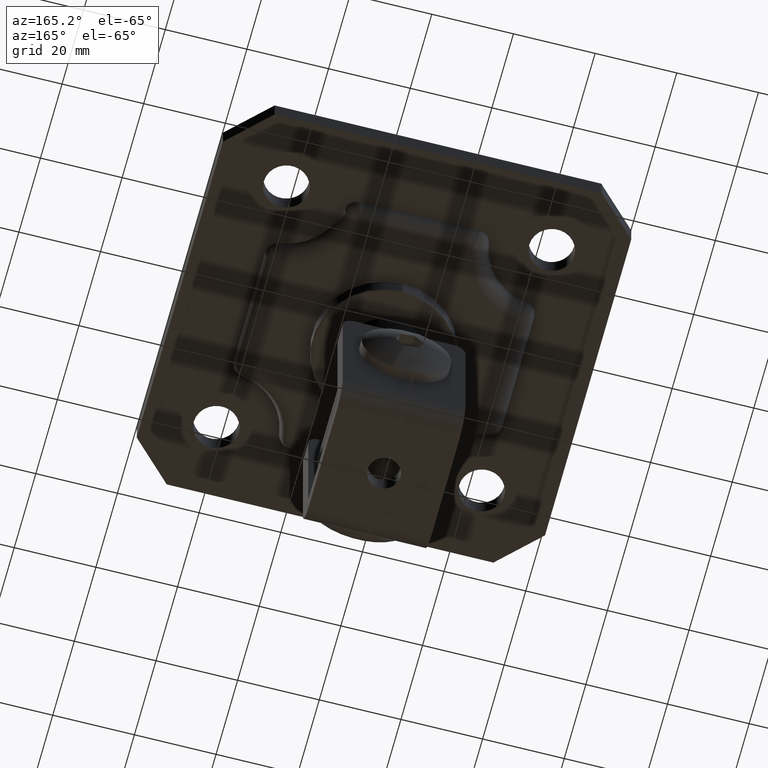
[diagram: clean part render]
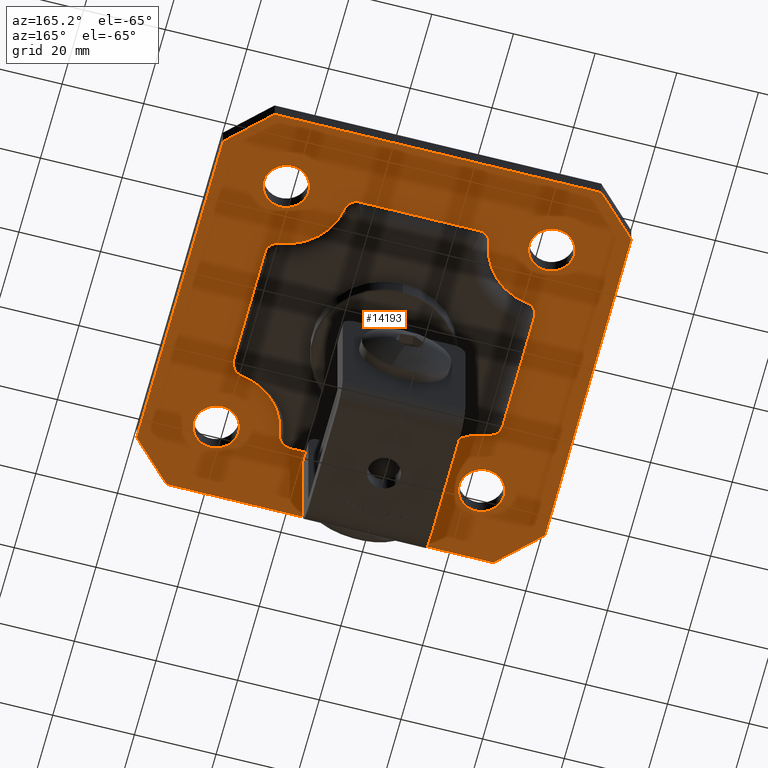
[diagram: same view with one face highlighted and labeled with its STEP entity id]
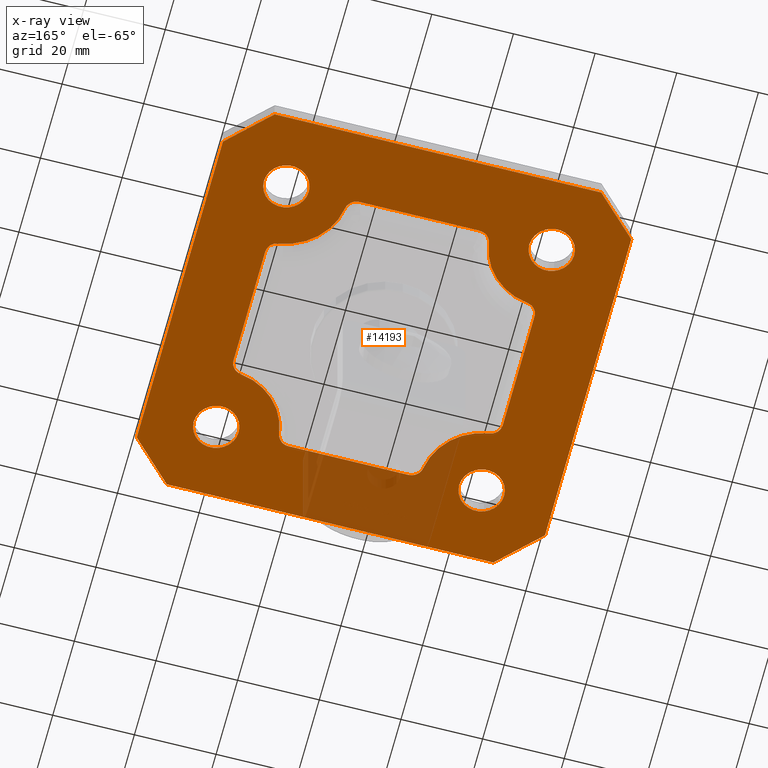
[diagram: x-ray of the same camera — body ghosted, the highlighted face saturated]
A machine part, auxiliary view. The second image highlights one B-rep face of the part: STEP entity #14193.
The next image is the same camera in x-ray: the body ghosted, the highlighted face saturated — about 11% of this face is hidden behind the body in this view.
In plain terms, the highlighted planar face has unit normal (0, 0, -1).
Its self-contained STEP definition (entity closure, byte-faithful):
#14 = EDGE_CURVE ( 'NONE', #5047, #5505, #2516, .T. ) ;
#40 = CARTESIAN_POINT ( 'NONE',  ( -30.00000000000008500, 14.67445653002416300, 2.500000000000002200 ) ) ;
#142 = FACE_OUTER_BOUND ( 'NONE', #11369, .T. ) ;
#188 = EDGE_LOOP ( 'NONE', ( #15005, #862 ) ) ;
#402 = CARTESIAN_POINT ( 'NONE',  ( -38.00000000000009200, 32.50000000000009200, 2.500000000000002200 ) ) ;
#404 = EDGE_CURVE ( 'NONE', #9522, #10884, #17188, .T. ) ;
#410 = DIRECTION ( 'NONE',  ( 0.0000000000000000000, 0.0000000000000000000, 1.000000000000000000 ) ) ;
#453 = EDGE_CURVE ( 'NONE', #3191, #16392, #10427, .T. ) ;
#492 = AXIS2_PLACEMENT_3D ( 'NONE', #8103, #10165, #15516 ) ;
#725 = CARTESIAN_POINT ( 'NONE',  ( 14.67445653002416300, -30.00000000000008500, 2.500000000000002200 ) ) ;
#732 = CARTESIAN_POINT ( 'NONE',  ( -30.41666666666675300, 17.64538044168681500, 2.500000000000002200 ) ) ;
#790 = ORIENTED_EDGE ( 'NONE', *, *, #11199, .T. ) ;
#792 = CARTESIAN_POINT ( 'NONE',  ( 30.41666666666675300, 17.64538044168681500, 2.500000000000002200 ) ) ;
#808 = CIRCLE ( 'NONE', #16131, 3.000000000000006200 ) ;
#862 = ORIENTED_EDGE ( 'NONE', *, *, #453, .F. ) ;
#1063 = CARTESIAN_POINT ( 'NONE',  ( -50.00000000000017100, -50.00000000000017100, 2.500000000000002200 ) ) ;
#1066 = AXIS2_PLACEMENT_3D ( 'NONE', #10402, #13937, #10479 ) ;
#1147 = ORIENTED_EDGE ( 'NONE', *, *, #8750, .T. ) ;
#1154 = VERTEX_POINT ( 'NONE', #11385 ) ;
#1183 = EDGE_LOOP ( 'NONE', ( #7675, #8324 ) ) ;
#1288 = FACE_BOUND ( 'NONE', #14397, .T. ) ;
#1485 = ORIENTED_EDGE ( 'NONE', *, *, #7702, .F. ) ;
#1494 = CARTESIAN_POINT ( 'NONE',  ( 17.64538044168681500, 30.41666666666675300, 2.500000000000002200 ) ) ;
#1508 = ORIENTED_EDGE ( 'NONE', *, *, #21759, .T. ) ;
#1516 = DIRECTION ( 'NONE',  ( 1.000000000000000000, 0.0000000000000000000, 0.0000000000000000000 ) ) ;
#1524 = VERTEX_POINT ( 'NONE', #17024 ) ;
#1538 = CARTESIAN_POINT ( 'NONE',  ( 30.00000000000008500, -14.67445653002416300, 2.500000000000002200 ) ) ;
#1567 = FACE_BOUND ( 'NONE', #188, .T. ) ;
#1586 = VECTOR ( 'NONE', #10205, 1000.000000000000000 ) ;
#1628 = DIRECTION ( 'NONE',  ( 1.000000000000000000, 0.0000000000000000000, 0.0000000000000000000 ) ) ;
#1651 = CIRCLE ( 'NONE', #13244, 3.000000000000006200 ) ;
#1786 = AXIS2_PLACEMENT_3D ( 'NONE', #15859, #23002, #1516 ) ;
#1893 = DIRECTION ( 'NONE',  ( 1.000000000000000000, 0.0000000000000000000, 0.0000000000000000000 ) ) ;
#1907 = EDGE_CURVE ( 'NONE', #22791, #17912, #20463, .T. ) ;
#1974 = VERTEX_POINT ( 'NONE', #16852 ) ;
#1983 = VERTEX_POINT ( 'NONE', #15020 ) ;
#2119 = VECTOR ( 'NONE', #13485, 1000.000000000000000 ) ;
#2145 = EDGE_CURVE ( 'NONE', #17912, #22791, #21586, .T. ) ;
#2251 = CARTESIAN_POINT ( 'NONE',  ( -14.67445653002417000, -33.00000000000008500, 2.500000000000002200 ) ) ;
#2318 = DIRECTION ( 'NONE',  ( 1.000000000000000000, 0.0000000000000000000, 0.0000000000000000000 ) ) ;
#2352 = AXIS2_PLACEMENT_3D ( 'NONE', #725, #6703, #8583 ) ;
#2378 = CARTESIAN_POINT ( 'NONE',  ( -38.00000000000009200, -32.50000000000009900, 2.500000000000002200 ) ) ;
#2516 = CIRCLE ( 'NONE', #5023, 5.500000000000011500 ) ;
#2525 = DIRECTION ( 'NONE',  ( 0.0000000000000000000, 0.0000000000000000000, -1.000000000000000000 ) ) ;
#2805 = ORIENTED_EDGE ( 'NONE', *, *, #20796, .T. ) ;
#2887 = CARTESIAN_POINT ( 'NONE',  ( -50.00000000000018500, -40.00000000000002100, 2.500000000000002200 ) ) ;
#2994 = VECTOR ( 'NONE', #3659, 999.9999999999998900 ) ;
#3028 = ORIENTED_EDGE ( 'NONE', *, *, #17146, .F. ) ;
#3169 = EDGE_CURVE ( 'NONE', #14350, #20970, #5755, .T. ) ;
#3191 = VERTEX_POINT ( 'NONE', #17948 ) ;
#3221 = LINE ( 'NONE', #8850, #3484 ) ;
#3245 = AXIS2_PLACEMENT_3D ( 'NONE', #6817, #6895, #1628 ) ;
#3294 = CARTESIAN_POINT ( 'NONE',  ( -33.00000000000008500, 14.67445653002416300, 2.500000000000002200 ) ) ;
#3429 = EDGE_CURVE ( 'NONE', #1524, #16254, #23306, .T. ) ;
#3484 = VECTOR ( 'NONE', #7181, 999.9999999999998900 ) ;
#3522 = CARTESIAN_POINT ( 'NONE',  ( 14.67445653002416300, 30.00000000000008500, 2.500000000000002200 ) ) ;
#3659 = DIRECTION ( 'NONE',  ( -0.7071067811865485700, -0.7071067811865464600, -0.0000000000000000000 ) ) ;
#3734 = CARTESIAN_POINT ( 'NONE',  ( -45.00000000000003600, 45.00000000000015600, 2.500000000000002200 ) ) ;
#3805 = VECTOR ( 'NONE', #19715, 1000.000000000000000 ) ;
#3815 = ORIENTED_EDGE ( 'NONE', *, *, #20863, .T. ) ;
#3839 = DIRECTION ( 'NONE',  ( -0.0000000000000000000, -0.0000000000000000000, -1.000000000000000000 ) ) ;
#3856 = LINE ( 'NONE', #18290, #21993 ) ;
#3865 = ORIENTED_EDGE ( 'NONE', *, *, #22665, .T. ) ;
#3984 = CARTESIAN_POINT ( 'NONE',  ( -32.50000000000009200, -32.50000000000009900, 2.500000000000002200 ) ) ;
#4087 = CIRCLE ( 'NONE', #17164, 3.000000000000006200 ) ;
#4160 = ORIENTED_EDGE ( 'NONE', *, *, #9846, .T. ) ;
#4310 = DIRECTION ( 'NONE',  ( 1.000000000000000000, 1.156482317317869000E-015, 0.0000000000000000000 ) ) ;
#4365 = CARTESIAN_POINT ( 'NONE',  ( 33.00000000000008500, -14.67445653002416300, 2.500000000000002200 ) ) ;
#4434 = DIRECTION ( 'NONE',  ( 0.0000000000000000000, 0.0000000000000000000, -1.000000000000000000 ) ) ;
#4587 = CARTESIAN_POINT ( 'NONE',  ( -40.00000000000009200, 50.00000000000017100, 2.500000000000002200 ) ) ;
#5014 = CIRCLE ( 'NONE', #3245, 3.000000000000008000 ) ;
#5023 = AXIS2_PLACEMENT_3D ( 'NONE', #3984, #18208, #21811 ) ;
#5047 = VERTEX_POINT ( 'NONE', #2378 ) ;
#5061 = AXIS2_PLACEMENT_3D ( 'NONE', #18381, #9282, #18457 ) ;
#5203 = CARTESIAN_POINT ( 'NONE',  ( -33.00000000000008500, 17.50833564943510000, 2.500000000000002200 ) ) ;
#5332 = EDGE_CURVE ( 'NONE', #1974, #22636, #14791, .T. ) ;
#5419 = EDGE_LOOP ( 'NONE', ( #1485, #18647 ) ) ;
#5431 = ORIENTED_EDGE ( 'NONE', *, *, #5523, .F. ) ;
#5505 = VERTEX_POINT ( 'NONE', #12534 ) ;
#5523 = EDGE_CURVE ( 'NONE', #16141, #21801, #17319, .T. ) ;
#5755 = LINE ( 'NONE', #7205, #10277 ) ;
#5783 = CIRCLE ( 'NONE', #9272, 3.000000000000008000 ) ;
#6073 = DIRECTION ( 'NONE',  ( 1.000000000000000000, 0.0000000000000000000, 0.0000000000000000000 ) ) ;
#6152 = EDGE_CURVE ( 'NONE', #1983, #12073, #17077, .T. ) ;
#6248 = DIRECTION ( 'NONE',  ( 1.000000000000000000, 0.0000000000000000000, 0.0000000000000000000 ) ) ;
#6444 = CARTESIAN_POINT ( 'NONE',  ( -17.50833564943510400, 33.00000000000008500, 2.500000000000002200 ) ) ;
#6495 = CARTESIAN_POINT ( 'NONE',  ( -17.50833564943510400, -33.00000000000008500, 2.500000000000002200 ) ) ;
#6532 = ORIENTED_EDGE ( 'NONE', *, *, #10450, .F. ) ;
#6703 = DIRECTION ( 'NONE',  ( -0.0000000000000000000, -0.0000000000000000000, -1.000000000000000000 ) ) ;
#6817 = CARTESIAN_POINT ( 'NONE',  ( -14.67445653002417000, -30.00000000000008500, 2.500000000000002200 ) ) ;
#6895 = DIRECTION ( 'NONE',  ( -0.0000000000000000000, -0.0000000000000000000, -1.000000000000000000 ) ) ;
#6913 = FACE_BOUND ( 'NONE', #1183, .T. ) ;
#6915 = EDGE_CURVE ( 'NONE', #21557, #8063, #17290, .T. ) ;
#7102 = VERTEX_POINT ( 'NONE', #732 ) ;
#7104 = VERTEX_POINT ( 'NONE', #8036 ) ;
#7181 = DIRECTION ( 'NONE',  ( 0.7071067811865464600, -0.7071067811865485700, -0.0000000000000000000 ) ) ;
#7204 = CIRCLE ( 'NONE', #1786, 15.00000000000004100 ) ;
#7205 = CARTESIAN_POINT ( 'NONE',  ( -50.00000000000019200, 50.00000000000017100, 2.500000000000002200 ) ) ;
#7220 = CARTESIAN_POINT ( 'NONE',  ( -33.00000000000008500, -14.67445653002415500, 2.500000000000002200 ) ) ;
#7390 = CARTESIAN_POINT ( 'NONE',  ( 50.00000000000016300, 40.00000000000005700, 2.500000000000002200 ) ) ;
#7606 = CARTESIAN_POINT ( 'NONE',  ( 32.50000000000007800, -32.50000000000009900, 2.500000000000002200 ) ) ;
#7675 = ORIENTED_EDGE ( 'NONE', *, *, #14, .F. ) ;
#7702 = EDGE_CURVE ( 'NONE', #8063, #21557, #16981, .T. ) ;
#7833 = CARTESIAN_POINT ( 'NONE',  ( 0.0000000000000000000, 0.0000000000000000000, 2.500000000000002200 ) ) ;
#7878 = CARTESIAN_POINT ( 'NONE',  ( -50.00000000000019200, 50.00000000000017100, 2.500000000000002200 ) ) ;
#8025 = FACE_BOUND ( 'NONE', #5419, .T. ) ;
#8036 = CARTESIAN_POINT ( 'NONE',  ( -30.41666666666675700, -17.64538044168680400, 2.500000000000002200 ) ) ;
#8063 = VERTEX_POINT ( 'NONE', #402 ) ;
#8103 = CARTESIAN_POINT ( 'NONE',  ( 32.50000000000007800, 32.50000000000005700, 2.500000000000002200 ) ) ;
#8196 = DIRECTION ( 'NONE',  ( -0.0000000000000000000, -0.0000000000000000000, -1.000000000000000000 ) ) ;
#8200 = DIRECTION ( 'NONE',  ( 0.0000000000000000000, 0.0000000000000000000, -1.000000000000000000 ) ) ;
#8276 = CARTESIAN_POINT ( 'NONE',  ( -14.67445653002416300, 30.00000000000008500, 2.500000000000002200 ) ) ;
#8324 = ORIENTED_EDGE ( 'NONE', *, *, #13052, .F. ) ;
#8365 = VERTEX_POINT ( 'NONE', #7390 ) ;
#8521 = ORIENTED_EDGE ( 'NONE', *, *, #11449, .T. ) ;
#8583 = DIRECTION ( 'NONE',  ( 1.000000000000000000, 0.0000000000000000000, 0.0000000000000000000 ) ) ;
#8642 = CARTESIAN_POINT ( 'NONE',  ( 14.67445653002416600, -33.00000000000008500, 2.500000000000002200 ) ) ;
#8750 = EDGE_CURVE ( 'NONE', #16141, #7102, #22313, .T. ) ;
#8797 = VERTEX_POINT ( 'NONE', #2251 ) ;
#8813 = ORIENTED_EDGE ( 'NONE', *, *, #2145, .F. ) ;
#8850 = CARTESIAN_POINT ( 'NONE',  ( -45.00000000000014200, -45.00000000000002100, 2.500000000000002200 ) ) ;
#8855 = VECTOR ( 'NONE', #13666, 1000.000000000000000 ) ;
#8880 = CARTESIAN_POINT ( 'NONE',  ( -17.64538044168681800, -30.41666666666675300, 2.500000000000002200 ) ) ;
#8997 = AXIS2_PLACEMENT_3D ( 'NONE', #9370, #14914, #14750 ) ;
#9020 = ORIENTED_EDGE ( 'NONE', *, *, #20344, .T. ) ;
#9159 = CARTESIAN_POINT ( 'NONE',  ( -32.50000000000009200, 32.50000000000009200, 2.500000000000002200 ) ) ;
#9272 = AXIS2_PLACEMENT_3D ( 'NONE', #8276, #8196, #10180 ) ;
#9282 = DIRECTION ( 'NONE',  ( 0.0000000000000000000, 0.0000000000000000000, 1.000000000000000000 ) ) ;
#9370 = CARTESIAN_POINT ( 'NONE',  ( 32.50000000000007800, 32.50000000000005700, 2.500000000000002200 ) ) ;
#9489 = DIRECTION ( 'NONE',  ( 1.000000000000000000, 0.0000000000000000000, 0.0000000000000000000 ) ) ;
#9522 = VERTEX_POINT ( 'NONE', #792 ) ;
#9536 = CARTESIAN_POINT ( 'NONE',  ( 32.50000000000009200, 32.50000000000009200, 2.500000000000002200 ) ) ;
#9577 = DIRECTION ( 'NONE',  ( -0.0000000000000000000, -0.0000000000000000000, -1.000000000000000000 ) ) ;
#9586 = VERTEX_POINT ( 'NONE', #12282 ) ;
#9798 = CARTESIAN_POINT ( 'NONE',  ( -32.50000000000009900, -32.50000000000008500, 2.500000000000002200 ) ) ;
#9846 = EDGE_CURVE ( 'NONE', #1154, #12073, #5783, .T. ) ;
#10031 = DIRECTION ( 'NONE',  ( 1.000000000000000000, 0.0000000000000000000, 0.0000000000000000000 ) ) ;
#10106 = VECTOR ( 'NONE', #11531, 1000.000000000000000 ) ;
#10165 = DIRECTION ( 'NONE',  ( 0.0000000000000000000, 0.0000000000000000000, 1.000000000000000000 ) ) ;
#10180 = DIRECTION ( 'NONE',  ( 1.000000000000000000, 2.312964634635736700E-015, 0.0000000000000000000 ) ) ;
#10205 = DIRECTION ( 'NONE',  ( 1.000000000000000000, 0.0000000000000000000, 0.0000000000000000000 ) ) ;
#10221 = EDGE_CURVE ( 'NONE', #1983, #10884, #19400, .T. ) ;
#10277 = VECTOR ( 'NONE', #21474, 1000.000000000000000 ) ;
#10376 = ORIENTED_EDGE ( 'NONE', *, *, #14046, .T. ) ;
#10402 = CARTESIAN_POINT ( 'NONE',  ( -32.50000000000009200, 32.50000000000009200, 2.500000000000002200 ) ) ;
#10427 = CIRCLE ( 'NONE', #492, 5.500000000000011500 ) ;
#10450 = EDGE_CURVE ( 'NONE', #19198, #14284, #14833, .T. ) ;
#10479 = DIRECTION ( 'NONE',  ( 1.000000000000000000, 0.0000000000000000000, 0.0000000000000000000 ) ) ;
#10618 = EDGE_CURVE ( 'NONE', #16392, #3191, #16243, .T. ) ;
#10689 = LINE ( 'NONE', #7878, #10106 ) ;
#10869 = AXIS2_PLACEMENT_3D ( 'NONE', #9159, #10913, #18095 ) ;
#10884 = VERTEX_POINT ( 'NONE', #1494 ) ;
#10900 = VERTEX_POINT ( 'NONE', #8880 ) ;
#10913 = DIRECTION ( 'NONE',  ( 0.0000000000000000000, 0.0000000000000000000, 1.000000000000000000 ) ) ;
#10933 = LINE ( 'NONE', #14270, #23383 ) ;
#11083 = VERTEX_POINT ( 'NONE', #4587 ) ;
#11142 = LINE ( 'NONE', #23357, #15099 ) ;
#11199 = EDGE_CURVE ( 'NONE', #16254, #12303, #3856, .T. ) ;
#11238 = DIRECTION ( 'NONE',  ( 0.0000000000000000000, 0.0000000000000000000, 1.000000000000000000 ) ) ;
#11259 = DIRECTION ( 'NONE',  ( 0.7071067811865490200, 0.7071067811865460200, -0.0000000000000000000 ) ) ;
#11369 = EDGE_LOOP ( 'NONE', ( #3815, #3865, #19352, #20288, #19195, #790, #10376, #1508 ) ) ;
#11385 = CARTESIAN_POINT ( 'NONE',  ( -17.64538044168681500, 30.41666666666675300, 2.500000000000002200 ) ) ;
#11449 = EDGE_CURVE ( 'NONE', #8797, #10900, #5014, .T. ) ;
#11531 = DIRECTION ( 'NONE',  ( -1.000000000000000000, 0.0000000000000000000, 0.0000000000000000000 ) ) ;
#12073 = VERTEX_POINT ( 'NONE', #20321 ) ;
#12074 = ORIENTED_EDGE ( 'NONE', *, *, #5332, .T. ) ;
#12254 = DIRECTION ( 'NONE',  ( 1.000000000000000000, 0.0000000000000000000, 0.0000000000000000000 ) ) ;
#12282 = CARTESIAN_POINT ( 'NONE',  ( 30.41666666666675300, -17.64538044168681500, 2.500000000000002200 ) ) ;
#12303 = VERTEX_POINT ( 'NONE', #18255 ) ;
#12534 = CARTESIAN_POINT ( 'NONE',  ( -27.00000000000009600, -32.50000000000009900, 2.500000000000002200 ) ) ;
#12536 = CARTESIAN_POINT ( 'NONE',  ( 27.00000000000007800, -32.50000000000009900, 2.500000000000002200 ) ) ;
#12659 = EDGE_CURVE ( 'NONE', #8797, #22636, #23347, .T. ) ;
#12829 = ORIENTED_EDGE ( 'NONE', *, *, #14361, .F. ) ;
#13052 = EDGE_CURVE ( 'NONE', #5505, #5047, #21929, .T. ) ;
#13179 = CARTESIAN_POINT ( 'NONE',  ( 27.00000000000008200, 32.50000000000005700, 2.500000000000002200 ) ) ;
#13192 = DIRECTION ( 'NONE',  ( -0.0000000000000000000, -0.0000000000000000000, -1.000000000000000000 ) ) ;
#13244 = AXIS2_PLACEMENT_3D ( 'NONE', #1538, #15549, #12254 ) ;
#13485 = DIRECTION ( 'NONE',  ( -1.000000000000000000, 0.0000000000000000000, 0.0000000000000000000 ) ) ;
#13493 = EDGE_LOOP ( 'NONE', ( #5431, #1147, #3028, #4160, #15982, #13687, #19649, #9020, #6532, #14706, #16031, #12074, #15457, #8521, #12829, #2805 ) ) ;
#13527 = AXIS2_PLACEMENT_3D ( 'NONE', #7606, #22257, #2318 ) ;
#13666 = DIRECTION ( 'NONE',  ( 1.000000000000000000, 0.0000000000000000000, 0.0000000000000000000 ) ) ;
#13687 = ORIENTED_EDGE ( 'NONE', *, *, #10221, .T. ) ;
#13937 = DIRECTION ( 'NONE',  ( 0.0000000000000000000, 0.0000000000000000000, 1.000000000000000000 ) ) ;
#14046 = EDGE_CURVE ( 'NONE', #12303, #8365, #11142, .T. ) ;
#14193 = ADVANCED_FACE ( 'NONE', ( #1288, #8025, #142, #1567, #6913, #20238 ), #18672, .T. ) ;
#14253 = DIRECTION ( 'NONE',  ( -6.938893903907223400E-017, 1.000000000000000000, 0.0000000000000000000 ) ) ;
#14270 = CARTESIAN_POINT ( 'NONE',  ( 45.00000000000013500, 45.00000000000001400, 2.500000000000002200 ) ) ;
#14284 = VERTEX_POINT ( 'NONE', #20370 ) ;
#14350 = VERTEX_POINT ( 'NONE', #19049 ) ;
#14361 = EDGE_CURVE ( 'NONE', #7104, #10900, #20803, .T. ) ;
#14397 = EDGE_LOOP ( 'NONE', ( #8813, #18793 ) ) ;
#14488 = CIRCLE ( 'NONE', #16066, 15.00000000000004100 ) ;
#14575 = LINE ( 'NONE', #3734, #2994 ) ;
#14706 = ORIENTED_EDGE ( 'NONE', *, *, #18408, .T. ) ;
#14750 = DIRECTION ( 'NONE',  ( 1.000000000000000000, 0.0000000000000000000, 0.0000000000000000000 ) ) ;
#14788 = DIRECTION ( 'NONE',  ( 1.000000000000000000, 0.0000000000000000000, 0.0000000000000000000 ) ) ;
#14791 = CIRCLE ( 'NONE', #2352, 3.000000000000006200 ) ;
#14833 = LINE ( 'NONE', #18065, #3805 ) ;
#14914 = DIRECTION ( 'NONE',  ( 0.0000000000000000000, 0.0000000000000000000, 1.000000000000000000 ) ) ;
#15005 = ORIENTED_EDGE ( 'NONE', *, *, #10618, .F. ) ;
#15020 = CARTESIAN_POINT ( 'NONE',  ( 14.67445653002416600, 33.00000000000008500, 2.500000000000002200 ) ) ;
#15029 = VERTEX_POINT ( 'NONE', #18661 ) ;
#15099 = VECTOR ( 'NONE', #14253, 1000.000000000000000 ) ;
#15110 = AXIS2_PLACEMENT_3D ( 'NONE', #20132, #11238, #14788 ) ;
#15457 = ORIENTED_EDGE ( 'NONE', *, *, #12659, .F. ) ;
#15516 = DIRECTION ( 'NONE',  ( 1.000000000000000000, 0.0000000000000000000, 0.0000000000000000000 ) ) ;
#15549 = DIRECTION ( 'NONE',  ( -0.0000000000000000000, -0.0000000000000000000, -1.000000000000000000 ) ) ;
#15737 = AXIS2_PLACEMENT_3D ( 'NONE', #40, #9577, #16299 ) ;
#15853 = CARTESIAN_POINT ( 'NONE',  ( 40.00000000000000700, -50.00000000000017100, 2.500000000000002200 ) ) ;
#15859 = CARTESIAN_POINT ( 'NONE',  ( 32.50000000000009200, -32.50000000000009200, 2.500000000000002200 ) ) ;
#15978 = EDGE_CURVE ( 'NONE', #20970, #1524, #3221, .T. ) ;
#15982 = ORIENTED_EDGE ( 'NONE', *, *, #6152, .F. ) ;
#16031 = ORIENTED_EDGE ( 'NONE', *, *, #23252, .F. ) ;
#16066 = AXIS2_PLACEMENT_3D ( 'NONE', #20837, #4434, #10031 ) ;
#16121 = DIRECTION ( 'NONE',  ( -0.0000000000000000000, -0.0000000000000000000, -1.000000000000000000 ) ) ;
#16131 = AXIS2_PLACEMENT_3D ( 'NONE', #16977, #13192, #4310 ) ;
#16141 = VERTEX_POINT ( 'NONE', #3294 ) ;
#16204 = VECTOR ( 'NONE', #19547, 1000.000000000000000 ) ;
#16243 = CIRCLE ( 'NONE', #8997, 5.500000000000011500 ) ;
#16254 = VERTEX_POINT ( 'NONE', #15853 ) ;
#16299 = DIRECTION ( 'NONE',  ( 1.000000000000000000, 0.0000000000000000000, 0.0000000000000000000 ) ) ;
#16359 = CARTESIAN_POINT ( 'NONE',  ( 30.00000000000008500, 14.67445653002416300, 2.500000000000002200 ) ) ;
#16392 = VERTEX_POINT ( 'NONE', #13179 ) ;
#16423 = DIRECTION ( 'NONE',  ( 1.000000000000000000, 1.156482317317869000E-015, 0.0000000000000000000 ) ) ;
#16852 = CARTESIAN_POINT ( 'NONE',  ( 17.64538044168681500, -30.41666666666675300, 2.500000000000002200 ) ) ;
#16977 = CARTESIAN_POINT ( 'NONE',  ( -30.00000000000008500, -14.67445653002415900, 2.500000000000002200 ) ) ;
#16981 = CIRCLE ( 'NONE', #1066, 5.500000000000011500 ) ;
#17024 = CARTESIAN_POINT ( 'NONE',  ( -40.00000000000009200, -50.00000000000017100, 2.500000000000002200 ) ) ;
#17077 = LINE ( 'NONE', #6444, #2119 ) ;
#17146 = EDGE_CURVE ( 'NONE', #1154, #7102, #14488, .T. ) ;
#17164 = AXIS2_PLACEMENT_3D ( 'NONE', #16359, #16121, #16423 ) ;
#17188 = CIRCLE ( 'NONE', #20359, 15.00000000000004100 ) ;
#17290 = CIRCLE ( 'NONE', #10869, 5.500000000000011500 ) ;
#17319 = LINE ( 'NONE', #5203, #16204 ) ;
#17912 = VERTEX_POINT ( 'NONE', #12536 ) ;
#17948 = CARTESIAN_POINT ( 'NONE',  ( 38.00000000000007800, 32.50000000000005700, 2.500000000000002200 ) ) ;
#18065 = CARTESIAN_POINT ( 'NONE',  ( 33.00000000000008500, 17.50833564943510000, 2.500000000000002200 ) ) ;
#18095 = DIRECTION ( 'NONE',  ( 1.000000000000000000, 0.0000000000000000000, 0.0000000000000000000 ) ) ;
#18208 = DIRECTION ( 'NONE',  ( 0.0000000000000000000, 0.0000000000000000000, 1.000000000000000000 ) ) ;
#18255 = CARTESIAN_POINT ( 'NONE',  ( 50.00000000000016300, -40.00000000000008500, 2.500000000000002200 ) ) ;
#18290 = CARTESIAN_POINT ( 'NONE',  ( 44.99999999999996400, -45.00000000000015600, 2.500000000000002200 ) ) ;
#18301 = CARTESIAN_POINT ( 'NONE',  ( -27.00000000000009600, 32.50000000000009200, 2.500000000000002200 ) ) ;
#18380 = AXIS2_PLACEMENT_3D ( 'NONE', #3522, #3839, #1893 ) ;
#18381 = CARTESIAN_POINT ( 'NONE',  ( 32.50000000000007800, -32.50000000000009900, 2.500000000000002200 ) ) ;
#18408 = EDGE_CURVE ( 'NONE', #19198, #9586, #1651, .T. ) ;
#18457 = DIRECTION ( 'NONE',  ( 1.000000000000000000, 0.0000000000000000000, 0.0000000000000000000 ) ) ;
#18647 = ORIENTED_EDGE ( 'NONE', *, *, #6915, .F. ) ;
#18661 = CARTESIAN_POINT ( 'NONE',  ( 40.00000000000006400, 50.00000000000017800, 2.500000000000002200 ) ) ;
#18672 = PLANE ( 'NONE',  #22151 ) ;
#18793 = ORIENTED_EDGE ( 'NONE', *, *, #1907, .F. ) ;
#19049 = CARTESIAN_POINT ( 'NONE',  ( -50.00000000000018500, 40.00000000000010700, 2.500000000000002200 ) ) ;
#19195 = ORIENTED_EDGE ( 'NONE', *, *, #3429, .T. ) ;
#19198 = VERTEX_POINT ( 'NONE', #4365 ) ;
#19352 = ORIENTED_EDGE ( 'NONE', *, *, #3169, .T. ) ;
#19400 = CIRCLE ( 'NONE', #18380, 3.000000000000006200 ) ;
#19547 = DIRECTION ( 'NONE',  ( 0.0000000000000000000, -1.000000000000000000, -0.0000000000000000000 ) ) ;
#19649 = ORIENTED_EDGE ( 'NONE', *, *, #404, .F. ) ;
#19715 = DIRECTION ( 'NONE',  ( 0.0000000000000000000, 1.000000000000000000, 0.0000000000000000000 ) ) ;
#20132 = CARTESIAN_POINT ( 'NONE',  ( -32.50000000000009200, -32.50000000000009900, 2.500000000000002200 ) ) ;
#20238 = FACE_BOUND ( 'NONE', #13493, .T. ) ;
#20288 = ORIENTED_EDGE ( 'NONE', *, *, #15978, .T. ) ;
#20321 = CARTESIAN_POINT ( 'NONE',  ( -14.67445653002416300, 33.00000000000008500, 2.500000000000002200 ) ) ;
#20344 = EDGE_CURVE ( 'NONE', #9522, #14284, #4087, .T. ) ;
#20359 = AXIS2_PLACEMENT_3D ( 'NONE', #9536, #2525, #6073 ) ;
#20370 = CARTESIAN_POINT ( 'NONE',  ( 33.00000000000008500, 14.67445653002416300, 2.500000000000002200 ) ) ;
#20463 = CIRCLE ( 'NONE', #13527, 5.500000000000011500 ) ;
#20796 = EDGE_CURVE ( 'NONE', #7104, #21801, #808, .T. ) ;
#20803 = CIRCLE ( 'NONE', #20948, 15.00000000000004100 ) ;
#20837 = CARTESIAN_POINT ( 'NONE',  ( -32.50000000000009200, 32.50000000000009200, 2.500000000000002200 ) ) ;
#20863 = EDGE_CURVE ( 'NONE', #15029, #11083, #10689, .T. ) ;
#20948 = AXIS2_PLACEMENT_3D ( 'NONE', #9798, #8200, #6248 ) ;
#20970 = VERTEX_POINT ( 'NONE', #2887 ) ;
#21171 = DIRECTION ( 'NONE',  ( -0.7071067811865464600, 0.7071067811865485700, 0.0000000000000000000 ) ) ;
#21474 = DIRECTION ( 'NONE',  ( 2.081668171172167800E-016, -1.000000000000000000, -0.0000000000000000000 ) ) ;
#21557 = VERTEX_POINT ( 'NONE', #18301 ) ;
#21586 = CIRCLE ( 'NONE', #5061, 5.500000000000011500 ) ;
#21759 = EDGE_CURVE ( 'NONE', #8365, #15029, #10933, .T. ) ;
#21801 = VERTEX_POINT ( 'NONE', #7220 ) ;
#21811 = DIRECTION ( 'NONE',  ( 1.000000000000000000, 0.0000000000000000000, 0.0000000000000000000 ) ) ;
#21929 = CIRCLE ( 'NONE', #15110, 5.500000000000011500 ) ;
#21993 = VECTOR ( 'NONE', #11259, 1000.000000000000200 ) ;
#22096 = CARTESIAN_POINT ( 'NONE',  ( 38.00000000000007800, -32.50000000000009900, 2.500000000000002200 ) ) ;
#22151 = AXIS2_PLACEMENT_3D ( 'NONE', #7833, #410, #9489 ) ;
#22257 = DIRECTION ( 'NONE',  ( 0.0000000000000000000, 0.0000000000000000000, 1.000000000000000000 ) ) ;
#22313 = CIRCLE ( 'NONE', #15737, 3.000000000000006200 ) ;
#22636 = VERTEX_POINT ( 'NONE', #8642 ) ;
#22665 = EDGE_CURVE ( 'NONE', #11083, #14350, #14575, .T. ) ;
#22791 = VERTEX_POINT ( 'NONE', #22096 ) ;
#23002 = DIRECTION ( 'NONE',  ( 0.0000000000000000000, 0.0000000000000000000, -1.000000000000000000 ) ) ;
#23252 = EDGE_CURVE ( 'NONE', #1974, #9586, #7204, .T. ) ;
#23306 = LINE ( 'NONE', #1063, #8855 ) ;
#23347 = LINE ( 'NONE', #6495, #1586 ) ;
#23357 = CARTESIAN_POINT ( 'NONE',  ( 50.00000000000016300, 50.00000000000017100, 2.500000000000002200 ) ) ;
#23383 = VECTOR ( 'NONE', #21171, 999.9999999999998900 ) ;